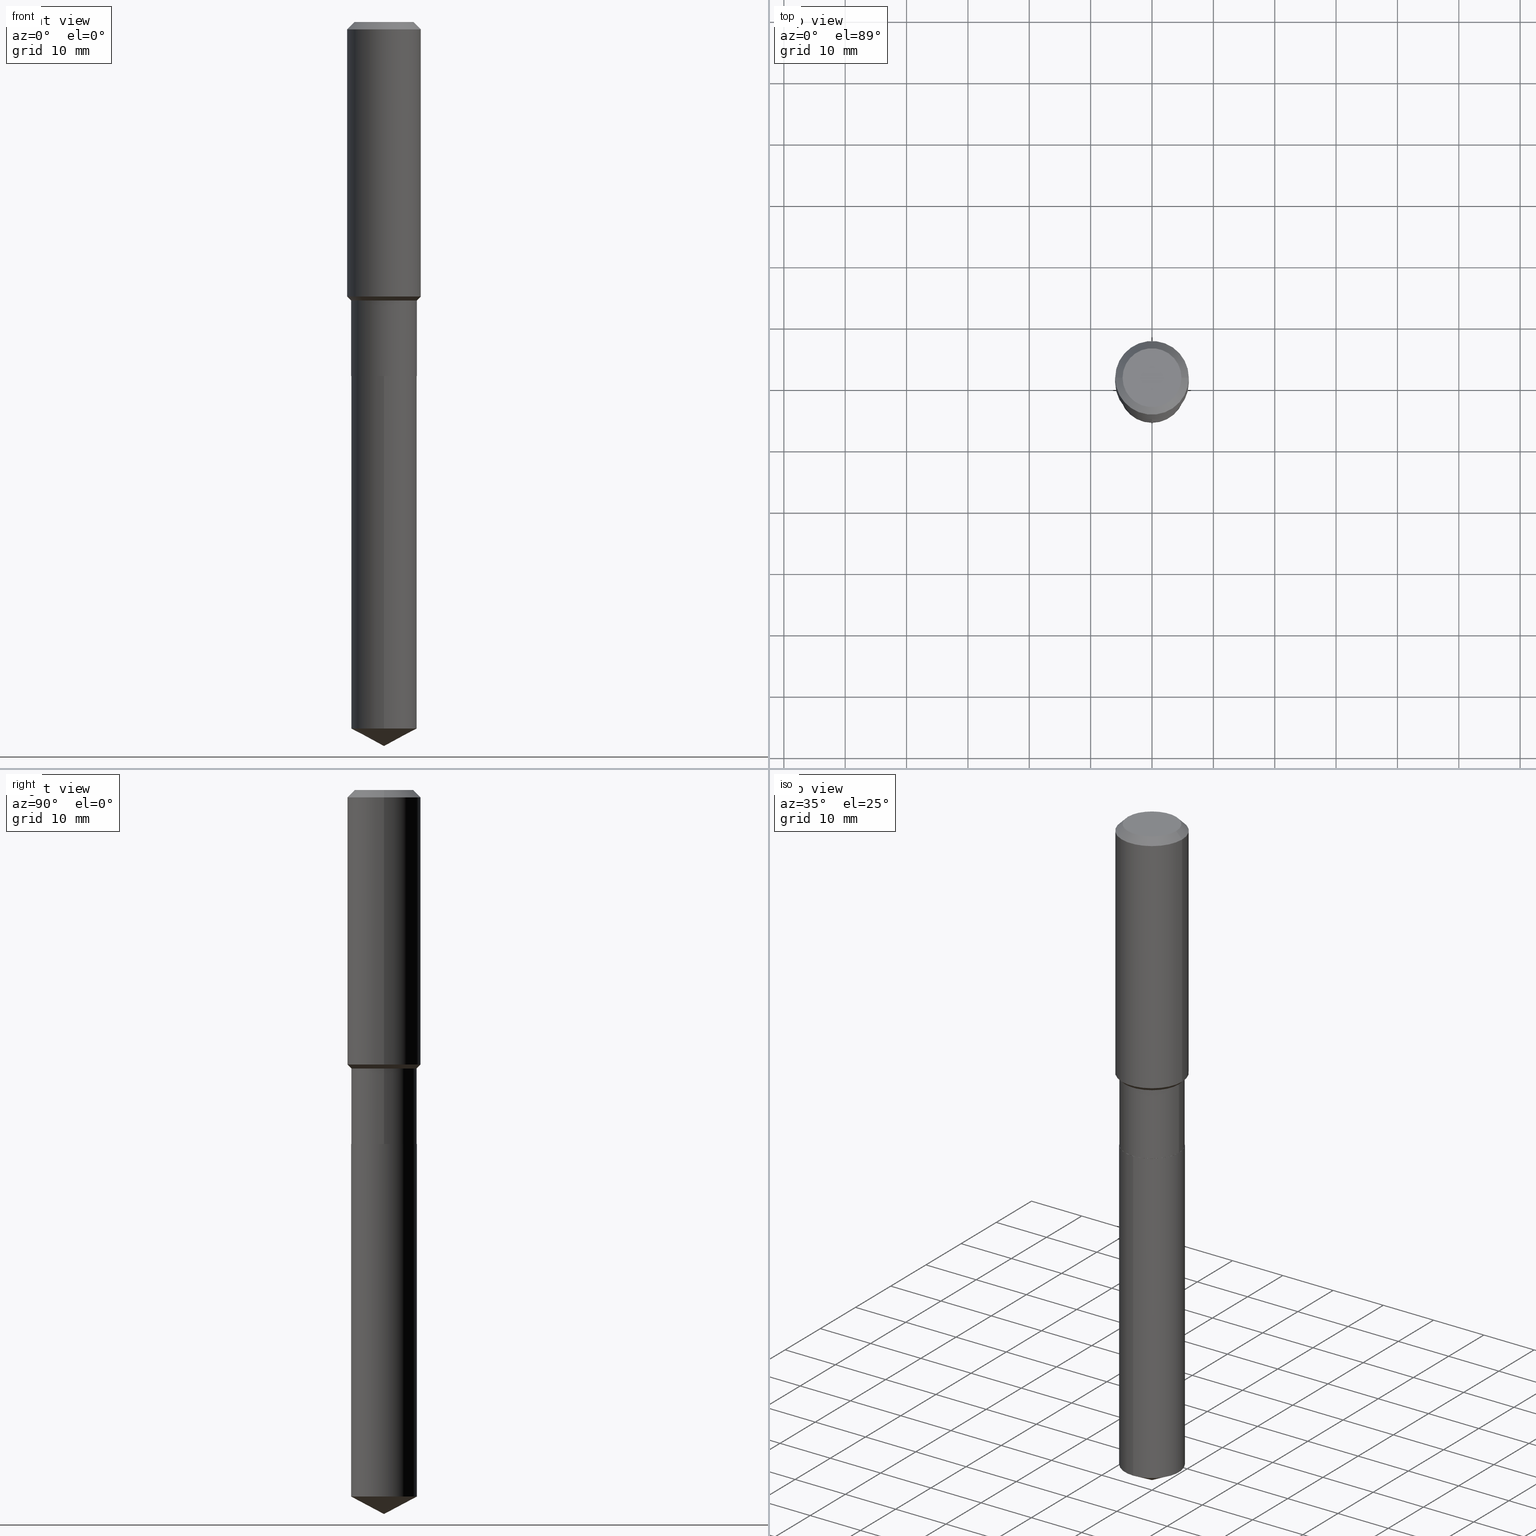
[diagram: canonical four-view strip — front | top / right | iso, engineering-drawing reading convention]
A machine part, canonical four-view strip (front | top / right | iso — engineering-drawing reading convention). The complete STEP part file that produces these views, byte-faithful:
ISO-10303-21;
HEADER;
FILE_DESCRIPTION (( 'STEP AP203' ),
    '1' );
FILE_NAME ('65237.STEP',
    '2024-04-24T21:48:02',
    ( '' ),
    ( '' ),
    'SwSTEP 2.0',
    'SolidWorks 2023',
    '' );
FILE_SCHEMA (( 'CONFIG_CONTROL_DESIGN' ));
ENDSEC;

DATA;
#1 = DIRECTION ( 'NONE',  ( -2.445449885251716834E-29, 3.491508434696715420E-15, 1.000000000000000000 ) ) ;
#2 = CIRCLE ( 'NONE', #314, 0.1889600000000000168 ) ;
#3 = DIRECTION ( 'NONE',  ( -2.445468806185136597E-29, 3.491481338843145583E-15, 1.000000000000000000 ) ) ;
#4 = DIRECTION ( 'NONE',  ( 1.000000000000000000, -6.982962677686263555E-15, 0.000000000000000000 ) ) ;
#5 = CARTESIAN_POINT ( 'NONE',  ( 0.2101500000000000035, -9.399067764165739668E-15, -2.271699999999999608 ) ) ;
#6 = CARTESIAN_POINT ( 'NONE',  ( -1.470961088054556343E-15, -0.2106500000000079420, -2.271699999999998720 ) ) ;
#7 = VERTEX_POINT ( 'NONE', #9 ) ;
#8 =( NAMED_UNIT ( * ) SI_UNIT ( $, .STERADIAN. ) SOLID_ANGLE_UNIT ( ) );
#9 = CARTESIAN_POINT ( 'NONE',  ( 0.2362000000000002153, -7.800143885042523413E-15, -1.761649999999999716 ) ) ;
#10 = AXIS2_PLACEMENT_3D ( 'NONE', #79, #113, #183 ) ;
#11 = AXIS2_PLACEMENT_3D ( 'NONE', #174, #360, #108 ) ;
#12 = FACE_OUTER_BOUND ( 'NONE', #469, .T. ) ;
#13 = CC_DESIGN_PERSON_AND_ORGANIZATION_ASSIGNMENT ( #198, #445, ( #323 ) ) ;
#14 = ORIENTED_EDGE ( 'NONE', *, *, #76, .T. ) ;
#15 = CARTESIAN_POINT ( 'NONE',  ( -0.2361999999999999933, -1.479550897644631324E-15, -0.04724000000000028177 ) ) ;
#16 =( CONVERSION_BASED_UNIT ( 'INCH', #219 ) LENGTH_UNIT ( ) NAMED_UNIT ( #290 ) );
#17 = UNCERTAINTY_MEASURE_WITH_UNIT (LENGTH_MEASURE( 1.000000000000000082E-05 ), #16, 'distance_accuracy_value', 'NONE');
#18 = CARTESIAN_POINT ( 'NONE',  ( -0.2106499999999999484, -5.588155659901859060E-15, -1.787199999999999900 ) ) ;
#19 = VERTEX_POINT ( 'NONE', #213 ) ;
#20 = CIRCLE ( 'NONE', #387, 0.2106499999999999484 ) ;
#21 = DIRECTION ( 'NONE',  ( -2.445468806185136597E-29, 3.491481338843145583E-15, 1.000000000000000000 ) ) ;
#22 = APPROVAL_ROLE ( '' ) ;
#23 = CYLINDRICAL_SURFACE ( 'NONE', #354, 0.2362000000000001043 ) ;
#24 = ORIENTED_EDGE ( 'NONE', *, *, #438, .T. ) ;
#25 = PERSON_AND_ORGANIZATION ( #102, #441 ) ;
#26 = DIRECTION ( 'NONE',  ( -6.982962677686265922E-15, -1.000000000000000000, 3.890597664843479129E-15 ) ) ;
#27 = APPROVAL_DATE_TIME ( #359, #231 ) ;
#28 = ADVANCED_FACE ( 'NONE', ( #74 ), #47, .T. ) ;
#29 = AXIS2_PLACEMENT_3D ( 'NONE', #218, #339, #45 ) ;
#30 = CONICAL_SURFACE ( 'NONE', #481, 74.04434902938362484, 1.082104136236486935 ) ;
#31 = CARTESIAN_POINT ( 'NONE',  ( 1.108696789848353068E-28, -1.582937420449712200E-14, -4.533695408220509648 ) ) ;
#32 = APPROVAL_STATUS ( 'not_yet_approved' ) ;
#33 = APPLICATION_CONTEXT ( 'configuration controlled 3d designs of mechanical parts and assemblies' ) ;
#34 = AXIS2_PLACEMENT_3D ( 'NONE', #456, #148, #4 ) ;
#35 = EDGE_CURVE ( 'NONE', #301, #268, #20, .T. ) ;
#36 = DIRECTION ( 'NONE',  ( -2.445449885251716834E-29, 3.491508434696715420E-15, 1.000000000000000000 ) ) ;
#37 = LINE ( 'NONE', #332, #457 ) ;
#38 = EDGE_CURVE ( 'NONE', #367, #83, #404, .T. ) ;
#39 = CARTESIAN_POINT ( 'NONE',  ( 5.555371487010773044E-29, -7.931598157449970914E-15, -2.271699999999999608 ) ) ;
#40 = DIRECTION ( 'NONE',  ( 2.445468806185136597E-29, -3.491481338843145583E-15, -1.000000000000000000 ) ) ;
#41 = CIRCLE ( 'NONE', #247, 0.1889600000000000168 ) ;
#42 = CC_DESIGN_SECURITY_CLASSIFICATION ( #266, ( #323 ) ) ;
#43 = DIRECTION ( 'NONE',  ( 0.7071067811866199593, -2.468850131083015945E-15, 0.7071067811864750752 ) ) ;
#44 = CARTESIAN_POINT ( 'NONE',  ( 5.555371487010773044E-29, -7.931598157449970914E-15, -2.271699999999999608 ) ) ;
#45 = DIRECTION ( 'NONE',  ( -6.982962677686265922E-15, -1.000000000000000000, 2.593731776562319814E-15 ) ) ;
#46 = ADVANCED_FACE ( 'NONE', ( #298 ), #110, .T. ) ;
#47 = CONICAL_SURFACE ( 'NONE', #10, 0.2106499999999999484, 0.7853981633974489451 ) ;
#48 = AXIS2_PLACEMENT_3D ( 'NONE', #447, #483, #215 ) ;
#49 = EDGE_LOOP ( 'NONE', ( #468, #235, #14, #146 ) ) ;
#50 = DIRECTION ( 'NONE',  ( 1.000000000000000000, -6.982962677686263555E-15, 0.000000000000000000 ) ) ;
#51 = DIRECTION ( 'NONE',  ( 1.000000000000000000, -6.982962677686266711E-15, 4.876176775795935793E-29 ) ) ;
#52 = VERTEX_POINT ( 'NONE', #451 ) ;
#53 = DIRECTION ( 'NONE',  ( -2.445449885251716553E-29, 3.491508434696715420E-15, 1.000000000000000000 ) ) ;
#54 = ORIENTED_EDGE ( 'NONE', *, *, #340, .F. ) ;
#55 = PERSON_AND_ORGANIZATION ( #102, #441 ) ;
#56 = CLOSED_SHELL ( 'NONE', ( #192, #289, #311, #28, #245, #226, #246, #201, #172, #263, #374, #46 ) ) ;
#57 = CONICAL_SURFACE ( 'NONE', #69, 0.2361999999999999933, 0.7853981633974452814 ) ;
#58 = CARTESIAN_POINT ( 'NONE',  ( -4.713871149261273121E-47, 6.730158695841826722E-33, 1.927594061857931128E-18 ) ) ;
#59 = CALENDAR_DATE ( 2024, 24, 4 ) ;
#60 = DIRECTION ( 'NONE',  ( -2.445468806185136597E-29, 3.491481338843145583E-15, 1.000000000000000000 ) ) ;
#61 = COORDINATED_UNIVERSAL_TIME_OFFSET ( 5, 0, .BEHIND. ) ;
#62 = PLANE ( 'NONE',  #176 ) ;
#63 = AXIS2_PLACEMENT_3D ( 'NONE', #260, #421, #434 ) ;
#64 = LOCAL_TIME ( 17, 48, 2.000000000000000000, #357 ) ;
#65 = DATE_TIME_ROLE ( 'classification_date' ) ;
#66 = EDGE_CURVE ( 'NONE', #52, #134, #458, .T. ) ;
#67 = DIRECTION ( 'NONE',  ( -2.438088387897960049E-29, 3.491481338843145188E-15, 1.000000000000000000 ) ) ;
#68 = CIRCLE ( 'NONE', #29, 0.2106500000000000039 ) ;
#69 = AXIS2_PLACEMENT_3D ( 'NONE', #392, #116, #196 ) ;
#70 = ORIENTED_EDGE ( 'NONE', *, *, #197, .F. ) ;
#71 = DIRECTION ( 'NONE',  ( -6.982962677686265922E-15, -1.000000000000000000, 3.541896320645556530E-15 ) ) ;
#72 = DIRECTION ( 'NONE',  ( -6.982962677686265922E-15, -1.000000000000000000, 3.890597664843479129E-15 ) ) ;
#73 = DIRECTION ( 'NONE',  ( -6.982962677686265922E-15, -1.000000000000000000, 3.890597664843479129E-15 ) ) ;
#74 = FACE_OUTER_BOUND ( 'NONE', #220, .T. ) ;
#75 = AXIS2_PLACEMENT_3D ( 'NONE', #203, #300, #72 ) ;
#76 = EDGE_CURVE ( 'NONE', #373, #83, #425, .T. ) ;
#77 = CARTESIAN_POINT ( 'NONE',  ( 0.2361999999999999933, -1.814313362916447440E-15, -0.04724000000000028177 ) ) ;
#78 = EDGE_LOOP ( 'NONE', ( #446, #214 ) ) ;
#79 = CARTESIAN_POINT ( 'NONE',  ( 4.370541850414076546E-29, -6.239975448780469270E-15, -1.787199999999999900 ) ) ;
#80 = CONICAL_SURFACE ( 'NONE', #185, 74.04434902938362484, 1.082104136236486935 ) ;
#81 = DIRECTION ( 'NONE',  ( 1.000000000000000000, -6.982962677686266711E-15, 4.876176775795935793E-29 ) ) ;
#82 = CC_DESIGN_DATE_AND_TIME_ASSIGNMENT ( #236, #161, ( #390 ) ) ;
#83 = VERTEX_POINT ( 'NONE', #6 ) ;
#84 = ORIENTED_EDGE ( 'NONE', *, *, #66, .F. ) ;
#85 = DIRECTION ( 'NONE',  ( 1.000000000000000000, -6.982962677686266711E-15, 4.876185090822587894E-29 ) ) ;
#86 = PERSON_AND_ORGANIZATION ( #102, #441 ) ;
#87 = CARTESIAN_POINT ( 'NONE',  ( -0.2106499999999999762, 1.496758272878650872E-15, -1.036173676762195916E-29 ) ) ;
#88 = EDGE_LOOP ( 'NONE', ( #190, #341, #152, #186 ) ) ;
#89 = CALENDAR_DATE ( 2024, 24, 4 ) ;
#90 = CYLINDRICAL_SURFACE ( 'NONE', #117, 0.2106499999999999762 ) ;
#91 = APPLICATION_CONTEXT ( 'configuration controlled 3d designs of mechanical parts and assemblies' ) ;
#92 = CYLINDRICAL_SURFACE ( 'NONE', #182, 0.2362000000000001043 ) ;
#93 = CC_DESIGN_PERSON_AND_ORGANIZATION_ASSIGNMENT ( #129, #230, ( #390 ) ) ;
#94 = APPLICATION_PROTOCOL_DEFINITION ( 'international standard', 'config_control_design', 1994, #33 ) ;
#95 = ORIENTED_EDGE ( 'NONE', *, *, #138, .F. ) ;
#96 = SECURITY_CLASSIFICATION_LEVEL ( 'unclassified' ) ;
#97 = CLOSED_SHELL ( 'NONE', ( #329, #370, #454, #366, #477 ) ) ;
#98 = AXIS2_PLACEMENT_3D ( 'NONE', #31, #36, #106 ) ;
#99 = EDGE_LOOP ( 'NONE', ( #122, #261, #136, #309 ) ) ;
#100 = DIRECTION ( 'NONE',  ( -6.982962677686265922E-15, -1.000000000000000000, 3.541896320645556530E-15 ) ) ;
#101 = AXIS2_PLACEMENT_3D ( 'NONE', #206, #433, #363 ) ;
#102 = PERSON ( 'UNSPECIFIED', 'UNSPECIFIED', 'UNSPECIFIED', ('UNSPECIFIED'), ('UNSPECIFIED'), ('UNSPECIFIED') ) ;
#103 = ORIENTED_EDGE ( 'NONE', *, *, #364, .F. ) ;
#104 = DIRECTION ( 'NONE',  ( -2.445468806185136597E-29, 3.491481338843145583E-15, 1.000000000000000000 ) ) ;
#105 = DIRECTION ( 'NONE',  ( -2.445449885251716553E-29, 3.491508434696715420E-15, 1.000000000000000000 ) ) ;
#106 = DIRECTION ( 'NONE',  ( -6.982962677686265922E-15, -1.000000000000000000, 2.593731776562319814E-15 ) ) ;
#107 = DIRECTION ( 'NONE',  ( -2.445468806185136597E-29, 3.491481338843145583E-15, 1.000000000000000000 ) ) ;
#108 = DIRECTION ( 'NONE',  ( 1.000000000000000000, -6.982962677686266711E-15, 0.000000000000000000 ) ) ;
#109 = CARTESIAN_POINT ( 'NONE',  ( 0.2361999999999999933, -1.785387205520586782E-15, -0.04724000000000028177 ) ) ;
#110 = CONICAL_SURFACE ( 'NONE', #242, 0.2101500000000000035, 0.7853981633975507526 ) ;
#111 = CIRCLE ( 'NONE', #98, 0.2106500000000000039 ) ;
#112 = EDGE_CURVE ( 'NONE', #268, #7, #181, .T. ) ;
#113 = DIRECTION ( 'NONE',  ( -2.445468806185136597E-29, 3.491481338843145583E-15, 1.000000000000000000 ) ) ;
#114 = ORIENTED_EDGE ( 'NONE', *, *, #160, .F. ) ;
#115 = DIRECTION ( 'NONE',  ( 0.7071067811865479058, -2.468850131082261399E-15, 0.7071067811865470176 ) ) ;
#116 = DIRECTION ( 'NONE',  ( 2.445468806185136597E-29, -3.491481338843145583E-15, -1.000000000000000000 ) ) ;
#117 = AXIS2_PLACEMENT_3D ( 'NONE', #319, #402, #81 ) ;
#118 = APPROVAL_PERSON_ORGANIZATION ( #25, #231, #407 ) ;
#119 = EDGE_LOOP ( 'NONE', ( #84, #452, #347, #173 ) ) ;
#120 = DESIGN_CONTEXT ( 'detailed design', #91, 'design' ) ;
#121 = CARTESIAN_POINT ( 'NONE',  ( -0.2106499999999999484, -4.743217175901818200E-15, -1.787199999999999900 ) ) ;
#122 = ORIENTED_EDGE ( 'NONE', *, *, #251, .F. ) ;
#123 = VERTEX_POINT ( 'NONE', #424 ) ;
#124 = LINE ( 'NONE', #237, #156 ) ;
#125 = DIRECTION ( 'NONE',  ( 1.000000000000000000, -6.982962677686267499E-15, 0.000000000000000000 ) ) ;
#126 = ORIENTED_EDGE ( 'NONE', *, *, #408, .F. ) ;
#127 = APPROVAL ( #195, 'UNSPECIFIED' ) ;
#128 = MANIFOLD_SOLID_BREP ( 'Body-Move/Copy2[1]', #97 ) ;
#129 = PERSON_AND_ORGANIZATION ( #102, #441 ) ;
#130 = DIRECTION ( 'NONE',  ( -2.445468806185136597E-29, 3.491481338843145583E-15, 1.000000000000000000 ) ) ;
#131 = ORIENTED_EDGE ( 'NONE', *, *, #267, .T. ) ;
#132 = ORIENTED_EDGE ( 'NONE', *, *, #35, .T. ) ;
#133 = CIRCLE ( 'NONE', #362, 0.2362000000000002153 ) ;
#134 = VERTEX_POINT ( 'NONE', #77 ) ;
#135 = CARTESIAN_POINT ( 'NONE',  ( 4.370541850414076546E-29, -6.239975448780469270E-15, -1.787199999999999900 ) ) ;
#136 = ORIENTED_EDGE ( 'NONE', *, *, #448, .T. ) ;
#137 = CARTESIAN_POINT ( 'NONE',  ( 5.554148752607681363E-29, -7.929852416780550200E-15, -2.271199999999999442 ) ) ;
#138 = EDGE_CURVE ( 'NONE', #382, #373, #68, .T. ) ;
#139 = CIRCLE ( 'NONE', #427, 0.2106500000000000039 ) ;
#140 = DIRECTION ( 'NONE',  ( 1.000000000000000000, -6.982962677686267499E-15, 0.000000000000000000 ) ) ;
#141 = DIRECTION ( 'NONE',  ( 1.000000000000000000, -6.982962677686265922E-15, 0.000000000000000000 ) ) ;
#142 = ORIENTED_EDGE ( 'NONE', *, *, #444, .T. ) ;
#143 = EDGE_CURVE ( 'NONE', #282, #123, #151, .T. ) ;
#144 = ORIENTED_EDGE ( 'NONE', *, *, #112, .T. ) ;
#145 = CARTESIAN_POINT ( 'NONE',  ( -8.491668502287081473E-28, 1.212405228145137186E-13, 34.72437874015748349 ) ) ;
#146 = ORIENTED_EDGE ( 'NONE', *, *, #38, .F. ) ;
#147 = ORIENTED_EDGE ( 'NONE', *, *, #281, .T. ) ;
#148 = DIRECTION ( 'NONE',  ( -2.445468806185136597E-29, 3.491481338843145583E-15, 1.000000000000000000 ) ) ;
#149 = CONICAL_SURFACE ( 'NONE', #264, 0.2106499999999999484, 0.7853981633974489451 ) ;
#150 = ORIENTED_EDGE ( 'NONE', *, *, #438, .F. ) ;
#151 = LINE ( 'NONE', #381, #352 ) ;
#152 = ORIENTED_EDGE ( 'NONE', *, *, #160, .T. ) ;
#153 = CARTESIAN_POINT ( 'NONE',  ( 0.2362000000000001043, -1.649375784469496920E-15, 1.151752954443000508E-29 ) ) ;
#154 = PLANE ( 'NONE',  #234 ) ;
#155 = FACE_OUTER_BOUND ( 'NONE', #180, .T. ) ;
#156 = VECTOR ( 'NONE', #53, 39.37007874015748143 ) ;
#157 = VECTOR ( 'NONE', #43, 39.37007874015748143 ) ;
#158 = ORIENTED_EDGE ( 'NONE', *, *, #197, .T. ) ;
#159 = CARTESIAN_POINT ( 'NONE',  ( -9.427742298522546243E-47, 1.346031739168365344E-32, 3.855188123715862256E-18 ) ) ;
#160 = EDGE_CURVE ( 'NONE', #134, #223, #233, .T. ) ;
#161 = DATE_TIME_ROLE ( 'creation_date' ) ;
#162 = DIRECTION ( 'NONE',  ( 1.000000000000000000, -6.982962677686266711E-15, 4.876176775795935793E-29 ) ) ;
#163 = CC_DESIGN_PERSON_AND_ORGANIZATION_ASSIGNMENT ( #473, #164, ( #323 ) ) ;
#164 = PERSON_AND_ORGANIZATION_ROLE ( 'design_supplier' ) ;
#165 = FACE_OUTER_BOUND ( 'NONE', #460, .T. ) ;
#166 = LOCAL_TIME ( 17, 48, 2.000000000000000000, #355 ) ;
#167 = DIRECTION ( 'NONE',  ( -2.445468806185136597E-29, 3.491481338843145583E-15, 1.000000000000000000 ) ) ;
#168 = APPROVAL_ROLE ( '' ) ;
#169 = EDGE_CURVE ( 'NONE', #19, #223, #389, .T. ) ;
#170 = CIRCLE ( 'NONE', #48, 0.2101500000000000035 ) ;
#171 = CARTESIAN_POINT ( 'NONE',  ( 5.554148752607681363E-29, -7.929852416780550200E-15, -2.271199999999999442 ) ) ;
#172 = ADVANCED_FACE ( 'NONE', ( #416 ), #419, .T. ) ;
#173 = ORIENTED_EDGE ( 'NONE', *, *, #364, .T. ) ;
#174 = CARTESIAN_POINT ( 'NONE',  ( 1.155239464041865506E-30, -1.649375784469511859E-16, -0.04724000000000028177 ) ) ;
#175 = CARTESIAN_POINT ( 'NONE',  ( 1.496758272878761510E-15, 0.2106499999999841555, -4.533695408220510537 ) ) ;
#176 = AXIS2_PLACEMENT_3D ( 'NONE', #39, #67, #371 ) ;
#177 = LINE ( 'NONE', #455, #465 ) ;
#178 = CARTESIAN_POINT ( 'NONE',  ( 0.2106499999999999484, -7.710936536835081819E-15, -1.787199999999999900 ) ) ;
#179 = ADVANCED_BREP_SHAPE_REPRESENTATION ( '65237', ( #128, #285, #101 ), #184 ) ;
#180 = EDGE_LOOP ( 'NONE', ( #295, #24, #147, #103 ) ) ;
#181 = LINE ( 'NONE', #178, #216 ) ;
#182 = AXIS2_PLACEMENT_3D ( 'NONE', #474, #60, #466 ) ;
#183 = DIRECTION ( 'NONE',  ( 1.000000000000000000, -6.982962677686267499E-15, 0.000000000000000000 ) ) ;
#184 =( GEOMETRIC_REPRESENTATION_CONTEXT ( 3 ) GLOBAL_UNCERTAINTY_ASSIGNED_CONTEXT ( ( #17 ) ) GLOBAL_UNIT_ASSIGNED_CONTEXT ( ( #16, #464, #8 ) ) REPRESENTATION_CONTEXT ( 'NONE', 'WORKASPACE' ) );
#185 = AXIS2_PLACEMENT_3D ( 'NONE', #369, #249, #71 ) ;
#186 = ORIENTED_EDGE ( 'NONE', *, *, #461, .F. ) ;
#187 = DIRECTION ( 'NONE',  ( 2.438088387897960049E-29, -3.491481338843145188E-15, -1.000000000000000000 ) ) ;
#188 = PRODUCT_RELATED_PRODUCT_CATEGORY ( 'detail', '', ( #284 ) ) ;
#189 = FACE_OUTER_BOUND ( 'NONE', #386, .T. ) ;
#190 = ORIENTED_EDGE ( 'NONE', *, *, #350, .F. ) ;
#191 =( LENGTH_UNIT ( ) NAMED_UNIT ( * ) SI_UNIT ( $, .METRE. ) );
#192 = ADVANCED_FACE ( 'NONE', ( #12 ), #287, .T. ) ;
#193 = CYLINDRICAL_SURFACE ( 'NONE', #194, 0.2106500000000000039 ) ;
#194 = AXIS2_PLACEMENT_3D ( 'NONE', #440, #400, #26 ) ;
#195 = APPROVAL_STATUS ( 'not_yet_approved' ) ;
#196 = DIRECTION ( 'NONE',  ( -1.000000000000000000, 6.982962677686266711E-15, 0.000000000000000000 ) ) ;
#197 = EDGE_CURVE ( 'NONE', #7, #19, #410, .T. ) ;
#198 = PERSON_AND_ORGANIZATION ( #102, #441 ) ;
#199 = CARTESIAN_POINT ( 'NONE',  ( 0.2106500000000000039, -9.400813504835161960E-15, -2.271199999999999442 ) ) ;
#200 = ORIENTED_EDGE ( 'NONE', *, *, #255, .T. ) ;
#201 = ADVANCED_FACE ( 'NONE', ( #155 ), #92, .T. ) ;
#202 = CALENDAR_DATE ( 2024, 24, 4 ) ;
#203 = CARTESIAN_POINT ( 'NONE',  ( 5.555371487010773044E-29, -7.931598157449970914E-15, -2.271699999999999608 ) ) ;
#204 = CIRCLE ( 'NONE', #11, 0.2361999999999999933 ) ;
#205 = ORIENTED_EDGE ( 'NONE', *, *, #403, .T. ) ;
#206 = CARTESIAN_POINT ( 'NONE',  ( 0.000000000000000000, 0.000000000000000000, 0.000000000000000000 ) ) ;
#207 = LINE ( 'NONE', #280, #420 ) ;
#208 = AXIS2_PLACEMENT_3D ( 'NONE', #379, #1, #306 ) ;
#209 = APPROVAL_PERSON_ORGANIZATION ( #365, #240, #168 ) ;
#210 = ORIENTED_EDGE ( 'NONE', *, *, #281, .F. ) ;
#211 = FACE_OUTER_BOUND ( 'NONE', #317, .T. ) ;
#212 = LINE ( 'NONE', #417, #297 ) ;
#213 = CARTESIAN_POINT ( 'NONE',  ( -0.2362000000000002153, -4.472466158707667338E-15, -1.761649999999999716 ) ) ;
#214 = ORIENTED_EDGE ( 'NONE', *, *, #38, .T. ) ;
#215 = DIRECTION ( 'NONE',  ( 1.000000000000000000, -6.982962677686263555E-15, 0.000000000000000000 ) ) ;
#216 = VECTOR ( 'NONE', #115, 39.37007874015748854 ) ;
#217 = CIRCLE ( 'NONE', #368, 0.2101500000000000035 ) ;
#218 = CARTESIAN_POINT ( 'NONE',  ( 1.108696789848353068E-28, -1.582937420449712200E-14, -4.533695408220509648 ) ) ;
#219 = LENGTH_MEASURE_WITH_UNIT ( LENGTH_MEASURE( 0.02539999999999999897 ), #191 );
#220 = EDGE_LOOP ( 'NONE', ( #205, #200, #70, #432 ) ) ;
#221 = FACE_OUTER_BOUND ( 'NONE', #78, .T. ) ;
#222 = CARTESIAN_POINT ( 'NONE',  ( 1.155239464041865506E-30, -1.649375784469511859E-16, -0.04724000000000028177 ) ) ;
#223 = VERTEX_POINT ( 'NONE', #15 ) ;
#224 = VECTOR ( 'NONE', #428, 39.37007874015748143 ) ;
#225 = DIRECTION ( 'NONE',  ( 1.000000000000000000, -6.982962677686266711E-15, 0.000000000000000000 ) ) ;
#226 = ADVANCED_FACE ( 'NONE', ( #274 ), #353, .T. ) ;
#227 = FACE_OUTER_BOUND ( 'NONE', #430, .T. ) ;
#228 = ORIENTED_EDGE ( 'NONE', *, *, #426, .T. ) ;
#229 = DIRECTION ( 'NONE',  ( -0.7071067811865479058, 7.493145998870355738E-15, 0.7071067811865470176 ) ) ;
#230 = PERSON_AND_ORGANIZATION_ROLE ( 'creator' ) ;
#231 = APPROVAL ( #401, 'UNSPECIFIED' ) ;
#232 = LINE ( 'NONE', #153, #224 ) ;
#233 = CIRCLE ( 'NONE', #344, 0.2361999999999999933 ) ;
#234 = AXIS2_PLACEMENT_3D ( 'NONE', #383, #307, #470 ) ;
#235 = ORIENTED_EDGE ( 'NONE', *, *, #138, .T. ) ;
#236 = DATE_AND_TIME ( #394, #486 ) ;
#237 = CARTESIAN_POINT ( 'NONE',  ( 1.496758272878706487E-15, 0.2106499999999920936, -2.271700000000000053 ) ) ;
#238 = DATE_AND_TIME ( #89, #64 ) ;
#239 = CARTESIAN_POINT ( 'NONE',  ( 4.370541850414076546E-29, -6.239975448780469270E-15, -1.787199999999999900 ) ) ;
#240 = APPROVAL ( #32, 'UNSPECIFIED' ) ;
#241 = DIRECTION ( 'NONE',  ( -2.445449885251716834E-29, 3.491508434696715420E-15, 1.000000000000000000 ) ) ;
#242 = AXIS2_PLACEMENT_3D ( 'NONE', #44, #107, #50 ) ;
#243 = PERSON_AND_ORGANIZATION_ROLE ( 'classification_officer' ) ;
#244 = CC_DESIGN_APPROVAL ( #231, ( #266 ) ) ;
#245 = ADVANCED_FACE ( 'NONE', ( #313 ), #90, .T. ) ;
#246 = ADVANCED_FACE ( 'NONE', ( #165 ), #149, .T. ) ;
#247 = AXIS2_PLACEMENT_3D ( 'NONE', #159, #431, #85 ) ;
#248 = ORIENTED_EDGE ( 'NONE', *, *, #358, .F. ) ;
#249 = DIRECTION ( 'NONE',  ( -2.445449885251716834E-29, 3.491508434696715420E-15, 1.000000000000000000 ) ) ;
#250 = AXIS2_PLACEMENT_3D ( 'NONE', #135, #167, #257 ) ;
#251 = EDGE_CURVE ( 'NONE', #123, #301, #391, .T. ) ;
#252 = ORIENTED_EDGE ( 'NONE', *, *, #442, .F. ) ;
#253 = DIRECTION ( 'NONE',  ( 6.273719981627766865E-15, 0.8829475928589298750, 0.4694715627858853657 ) ) ;
#254 = CARTESIAN_POINT ( 'NONE',  ( 1.155239464041865506E-30, -1.649375784469511859E-16, -0.04724000000000028177 ) ) ;
#255 = EDGE_CURVE ( 'NONE', #301, #19, #462, .T. ) ;
#256 = VERTEX_POINT ( 'NONE', #397 ) ;
#257 = DIRECTION ( 'NONE',  ( 1.000000000000000000, -6.982962677686267499E-15, 0.000000000000000000 ) ) ;
#258 = CARTESIAN_POINT ( 'NONE',  ( -1.470961088054556343E-15, -0.2106500000000079420, -2.271699999999998720 ) ) ;
#259 = DIRECTION ( 'NONE',  ( -6.165590087286836029E-15, -0.8829475928589264333, 0.4694715627858916385 ) ) ;
#260 = CARTESIAN_POINT ( 'NONE',  ( 4.308060122416044929E-29, -6.150768100573026887E-15, -1.761649999999999716 ) ) ;
#261 = ORIENTED_EDGE ( 'NONE', *, *, #467, .T. ) ;
#262 = DIRECTION ( 'NONE',  ( 0.7071067811865453523, -7.319954787623248157E-15, -0.7071067811865496822 ) ) ;
#263 = ADVANCED_FACE ( 'NONE', ( #189 ), #270, .F. ) ;
#264 = AXIS2_PLACEMENT_3D ( 'NONE', #239, #21, #125 ) ;
#265 = CARTESIAN_POINT ( 'NONE',  ( 0.000000000000000000, 0.000000000000000000, 0.000000000000000000 ) ) ;
#266 = SECURITY_CLASSIFICATION ( '', '', #96 ) ;
#267 = EDGE_CURVE ( 'NONE', #484, #52, #41, .T. ) ;
#268 = VERTEX_POINT ( 'NONE', #316 ) ;
#269 = CARTESIAN_POINT ( 'NONE',  ( 5.555371487010773044E-29, -7.931598157449970914E-15, -2.271699999999999608 ) ) ;
#270 = PLANE ( 'NONE',  #439 ) ;
#271 = ORIENTED_EDGE ( 'NONE', *, *, #448, .F. ) ;
#272 = ORIENTED_EDGE ( 'NONE', *, *, #472, .T. ) ;
#273 = MECHANICAL_CONTEXT ( 'NONE', #33, 'mechanical' ) ;
#274 = FACE_OUTER_BOUND ( 'NONE', #99, .T. ) ;
#275 = ORIENTED_EDGE ( 'NONE', *, *, #472, .F. ) ;
#276 = FACE_OUTER_BOUND ( 'NONE', #315, .T. ) ;
#277 = VECTOR ( 'NONE', #262, 39.37007874015748143 ) ;
#278 = PERSON_AND_ORGANIZATION_ROLE ( 'design_owner' ) ;
#279 = DIRECTION ( 'NONE',  ( -2.445468806185136877E-29, 3.491481338843145188E-15, 1.000000000000000000 ) ) ;
#280 = CARTESIAN_POINT ( 'NONE',  ( 0.2106499999999999762, -1.470961088054611958E-15, 1.027166637821413806E-29 ) ) ;
#281 = EDGE_CURVE ( 'NONE', #7, #134, #232, .T. ) ;
#282 = VERTEX_POINT ( 'NONE', #471 ) ;
#283 = COORDINATED_UNIVERSAL_TIME_OFFSET ( 5, 0, .BEHIND. ) ;
#284 = PRODUCT ( '65237', '65237', '', ( #273 ) ) ;
#285 = MANIFOLD_SOLID_BREP ( 'Body-Move/Copy2[2]', #56 ) ;
#286 = EDGE_LOOP ( 'NONE', ( #328, #327, #459, #271 ) ) ;
#287 = CONICAL_SURFACE ( 'NONE', #34, 0.2101500000000000035, 0.7853981633975507526 ) ;
#288 = LOCAL_TIME ( 17, 48, 2.000000000000000000, #283 ) ;
#289 = ADVANCED_FACE ( 'NONE', ( #312 ), #57, .T. ) ;
#290 = DIMENSIONAL_EXPONENTS ( 1.000000000000000000, 0.000000000000000000, 0.000000000000000000, 0.000000000000000000, 0.000000000000000000, 0.000000000000000000, 0.000000000000000000 ) ;
#291 = ORIENTED_EDGE ( 'NONE', *, *, #385, .F. ) ;
#292 = FACE_OUTER_BOUND ( 'NONE', #49, .T. ) ;
#293 = EDGE_CURVE ( 'NONE', #382, #367, #124, .T. ) ;
#294 = AXIS2_PLACEMENT_3D ( 'NONE', #222, #40, #342 ) ;
#295 = ORIENTED_EDGE ( 'NONE', *, *, #169, .F. ) ;
#296 = DIRECTION ( 'NONE',  ( -2.445468806185136597E-29, 3.491481338843145583E-15, 1.000000000000000000 ) ) ;
#297 = VECTOR ( 'NONE', #253, 39.37007874015748143 ) ;
#298 = FACE_OUTER_BOUND ( 'NONE', #436, .T. ) ;
#299 = VERTEX_POINT ( 'NONE', #199 ) ;
#300 = DIRECTION ( 'NONE',  ( -2.445449885251716834E-29, 3.491508434696715420E-15, 1.000000000000000000 ) ) ;
#301 = VERTEX_POINT ( 'NONE', #18 ) ;
#302 = CARTESIAN_POINT ( 'NONE',  ( 5.555371487010773044E-29, -7.931598157449970914E-15, -2.271699999999999608 ) ) ;
#303 = ORIENTED_EDGE ( 'NONE', *, *, #426, .F. ) ;
#304 = CARTESIAN_POINT ( 'NONE',  ( -0.1889600000000000168, 1.401969416799070942E-15, 3.855188123706346622E-18 ) ) ;
#305 = CIRCLE ( 'NONE', #412, 0.2106500000000000039 ) ;
#306 = DIRECTION ( 'NONE',  ( -6.982962677686265922E-15, -1.000000000000000000, 3.890597664843479129E-15 ) ) ;
#307 = DIRECTION ( 'NONE',  ( 2.445449885251716553E-29, -3.491508434696715420E-15, -1.000000000000000000 ) ) ;
#308 = DIRECTION ( 'NONE',  ( -2.445468806185136877E-29, 3.491481338843145188E-15, 1.000000000000000000 ) ) ;
#309 = ORIENTED_EDGE ( 'NONE', *, *, #35, .F. ) ;
#310 = DIRECTION ( 'NONE',  ( 1.000000000000000000, -6.982962677686265922E-15, 0.000000000000000000 ) ) ;
#311 = ADVANCED_FACE ( 'NONE', ( #227 ), #23, .T. ) ;
#312 = FACE_OUTER_BOUND ( 'NONE', #88, .T. ) ;
#313 = FACE_OUTER_BOUND ( 'NONE', #286, .T. ) ;
#314 = AXIS2_PLACEMENT_3D ( 'NONE', #409, #296, #443 ) ;
#315 = EDGE_LOOP ( 'NONE', ( #320, #377, #54, #487 ) ) ;
#316 = CARTESIAN_POINT ( 'NONE',  ( 0.2106499999999999484, -7.710936536835081819E-15, -1.787199999999999900 ) ) ;
#317 = EDGE_LOOP ( 'NONE', ( #275, #303 ) ) ;
#318 = DATE_AND_TIME ( #399, #166 ) ;
#319 = CARTESIAN_POINT ( 'NONE',  ( 0.000000000000000000, 0.000000000000000000, 0.000000000000000000 ) ) ;
#320 = ORIENTED_EDGE ( 'NONE', *, *, #385, .T. ) ;
#321 = COORDINATED_UNIVERSAL_TIME_OFFSET ( 5, 0, .BEHIND. ) ;
#322 = VECTOR ( 'NONE', #279, 39.37007874015748143 ) ;
#323 = PRODUCT_DEFINITION_FORMATION_WITH_SPECIFIED_SOURCE ( 'ANY', '', #284, .NOT_KNOWN. ) ;
#324 = APPLICATION_PROTOCOL_DEFINITION ( 'international standard', 'config_control_design', 1994, #91 ) ;
#325 = CYLINDRICAL_SURFACE ( 'NONE', #345, 0.2106500000000000039 ) ;
#326 = APPROVAL_DATE_TIME ( #485, #240 ) ;
#327 = ORIENTED_EDGE ( 'NONE', *, *, #251, .T. ) ;
#328 = ORIENTED_EDGE ( 'NONE', *, *, #408, .T. ) ;
#329 = ADVANCED_FACE ( 'NONE', ( #276 ), #193, .T. ) ;
#330 = DIRECTION ( 'NONE',  ( 1.000000000000000000, -6.982962677686266711E-15, 0.000000000000000000 ) ) ;
#331 = ORIENTED_EDGE ( 'NONE', *, *, #255, .F. ) ;
#332 = CARTESIAN_POINT ( 'NONE',  ( -0.2361999999999999933, 1.484438206022545019E-15, -0.04724000000000028177 ) ) ;
#333 = CARTESIAN_POINT ( 'NONE',  ( 4.370541850414076546E-29, -6.239975448780469270E-15, -1.787199999999999900 ) ) ;
#334 = ORIENTED_EDGE ( 'NONE', *, *, #169, .T. ) ;
#335 = DIRECTION ( 'NONE',  ( -2.445449885251716834E-29, 3.491508434696715420E-15, 1.000000000000000000 ) ) ;
#336 = CIRCLE ( 'NONE', #75, 0.2106500000000000039 ) ;
#337 = DIRECTION ( 'NONE',  ( -0.7071067811866199593, 7.493145998870616062E-15, 0.7071067811864750752 ) ) ;
#338 = CARTESIAN_POINT ( 'NONE',  ( 1.136082653191389925E-28, -1.622050073507052876E-14, -4.645699999999999719 ) ) ;
#339 = DIRECTION ( 'NONE',  ( -2.445449885251716834E-29, 3.491508434696715420E-15, 1.000000000000000000 ) ) ;
#340 = EDGE_CURVE ( 'NONE', #83, #367, #336, .T. ) ;
#341 = ORIENTED_EDGE ( 'NONE', *, *, #66, .T. ) ;
#342 = DIRECTION ( 'NONE',  ( -1.000000000000000000, 6.982962677686266711E-15, 0.000000000000000000 ) ) ;
#343 = CC_DESIGN_PERSON_AND_ORGANIZATION_ASSIGNMENT ( #86, #278, ( #284 ) ) ;
#344 = AXIS2_PLACEMENT_3D ( 'NONE', #254, #376, #225 ) ;
#345 = AXIS2_PLACEMENT_3D ( 'NONE', #302, #335, #73 ) ;
#346 = CARTESIAN_POINT ( 'NONE',  ( -0.2362000000000001043, 1.678301941865357380E-15, -1.161852468318209317E-29 ) ) ;
#347 = ORIENTED_EDGE ( 'NONE', *, *, #461, .T. ) ;
#348 = DIRECTION ( 'NONE',  ( -1.000000000000000000, 6.982962677686265922E-15, -4.876176775795935793E-29 ) ) ;
#349 = ORIENTED_EDGE ( 'NONE', *, *, #444, .F. ) ;
#350 = EDGE_CURVE ( 'NONE', #52, #484, #2, .T. ) ;
#351 = DIRECTION ( 'NONE',  ( -2.445468806185136597E-29, 3.491481338843145583E-15, 1.000000000000000000 ) ) ;
#352 = VECTOR ( 'NONE', #337, 39.37007874015748143 ) ;
#353 = CYLINDRICAL_SURFACE ( 'NONE', #361, 0.2106499999999999762 ) ;
#354 = AXIS2_PLACEMENT_3D ( 'NONE', #265, #351, #162 ) ;
#355 = COORDINATED_UNIVERSAL_TIME_OFFSET ( 5, 0, .BEHIND. ) ;
#356 = CARTESIAN_POINT ( 'NONE',  ( 0.000000000000000000, 0.000000000000000000, 0.000000000000000000 ) ) ;
#357 = COORDINATED_UNIVERSAL_TIME_OFFSET ( 5, 0, .BEHIND. ) ;
#358 = EDGE_CURVE ( 'NONE', #405, #382, #212, .T. ) ;
#359 = DATE_AND_TIME ( #202, #406 ) ;
#360 = DIRECTION ( 'NONE',  ( -2.445468806185136597E-29, 3.491481338843145583E-15, 1.000000000000000000 ) ) ;
#361 = AXIS2_PLACEMENT_3D ( 'NONE', #356, #480, #51 ) ;
#362 = AXIS2_PLACEMENT_3D ( 'NONE', #378, #130, #330 ) ;
#363 = DIRECTION ( 'NONE',  ( 1.000000000000000000, 0.000000000000000000, 0.000000000000000000 ) ) ;
#364 = EDGE_CURVE ( 'NONE', #223, #134, #204, .T. ) ;
#365 = PERSON_AND_ORGANIZATION ( #102, #441 ) ;
#366 = ADVANCED_FACE ( 'NONE', ( #292 ), #325, .T. ) ;
#367 = VERTEX_POINT ( 'NONE', #375 ) ;
#368 = AXIS2_PLACEMENT_3D ( 'NONE', #269, #429, #423 ) ;
#369 = CARTESIAN_POINT ( 'NONE',  ( -8.491668502287081473E-28, 1.212405228145137186E-13, 34.72437874015748349 ) ) ;
#370 = ADVANCED_FACE ( 'NONE', ( #453 ), #80, .T. ) ;
#371 = DIRECTION ( 'NONE',  ( 1.000000000000000000, -6.982962677686265922E-15, 4.876176775795935793E-29 ) ) ;
#372 = ORIENTED_EDGE ( 'NONE', *, *, #143, .T. ) ;
#373 = VERTEX_POINT ( 'NONE', #415 ) ;
#374 = ADVANCED_FACE ( 'NONE', ( #211 ), #62, .F. ) ;
#375 = CARTESIAN_POINT ( 'NONE',  ( 1.496758272878762299E-15, 0.2106499999999920936, -2.271700000000000053 ) ) ;
#376 = DIRECTION ( 'NONE',  ( -2.445468806185136597E-29, 3.491481338843145583E-15, 1.000000000000000000 ) ) ;
#377 = ORIENTED_EDGE ( 'NONE', *, *, #293, .T. ) ;
#378 = CARTESIAN_POINT ( 'NONE',  ( 4.308060122416044929E-29, -6.150768100573026887E-15, -1.761649999999999716 ) ) ;
#379 = CARTESIAN_POINT ( 'NONE',  ( 5.555371487010773044E-29, -7.931598157449970914E-15, -2.271699999999999608 ) ) ;
#380 = CC_DESIGN_PERSON_AND_ORGANIZATION_ASSIGNMENT ( #437, #243, ( #266 ) ) ;
#381 = CARTESIAN_POINT ( 'NONE',  ( -0.2101500000000000035, -6.438392598250120744E-15, -2.271699999999999608 ) ) ;
#382 = VERTEX_POINT ( 'NONE', #175 ) ;
#383 = CARTESIAN_POINT ( 'NONE',  ( 5.555371487010773044E-29, -7.931598157449970914E-15, -2.271699999999999608 ) ) ;
#384 = DIRECTION ( 'NONE',  ( -2.445468806185136597E-29, 3.491481338843145583E-15, 1.000000000000000000 ) ) ;
#385 = EDGE_CURVE ( 'NONE', #373, #382, #111, .T. ) ;
#386 = EDGE_LOOP ( 'NONE', ( #131, #489 ) ) ;
#387 = AXIS2_PLACEMENT_3D ( 'NONE', #333, #384, #140 ) ;
#388 = APPROVAL_PERSON_ORGANIZATION ( #55, #127, #22 ) ;
#389 = LINE ( 'NONE', #346, #411 ) ;
#390 = PRODUCT_DEFINITION ( 'UNKNOWN', '', #323, #120 ) ;
#391 = LINE ( 'NONE', #87, #322 ) ;
#392 = CARTESIAN_POINT ( 'NONE',  ( 1.155239464041865506E-30, -1.649375784469511859E-16, -0.04724000000000028177 ) ) ;
#393 = ORIENTED_EDGE ( 'NONE', *, *, #143, .F. ) ;
#394 = CALENDAR_DATE ( 2024, 24, 4 ) ;
#395 = ORIENTED_EDGE ( 'NONE', *, *, #358, .T. ) ;
#396 = VECTOR ( 'NONE', #105, 39.37007874015748143 ) ;
#397 = CARTESIAN_POINT ( 'NONE',  ( 0.2101500000000000035, -9.399067764165739668E-15, -2.271699999999999608 ) ) ;
#398 = CIRCLE ( 'NONE', #250, 0.2106499999999999484 ) ;
#399 = CALENDAR_DATE ( 2024, 24, 4 ) ;
#400 = DIRECTION ( 'NONE',  ( -2.445449885251716834E-29, 3.491508434696715420E-15, 1.000000000000000000 ) ) ;
#401 = APPROVAL_STATUS ( 'not_yet_approved' ) ;
#402 = DIRECTION ( 'NONE',  ( -2.445468806185136597E-29, 3.491481338843145583E-15, 1.000000000000000000 ) ) ;
#403 = EDGE_CURVE ( 'NONE', #268, #301, #398, .T. ) ;
#404 = CIRCLE ( 'NONE', #208, 0.2106500000000000039 ) ;
#405 = VERTEX_POINT ( 'NONE', #338 ) ;
#406 = LOCAL_TIME ( 17, 48, 2.000000000000000000, #61 ) ;
#407 = APPROVAL_ROLE ( '' ) ;
#408 = EDGE_CURVE ( 'NONE', #299, #123, #305, .T. ) ;
#409 = CARTESIAN_POINT ( 'NONE',  ( -9.427742298522546243E-47, 1.346031739168365344E-32, 3.855188123715862256E-18 ) ) ;
#410 = CIRCLE ( 'NONE', #63, 0.2362000000000002153 ) ;
#411 = VECTOR ( 'NONE', #308, 39.37007874015748143 ) ;
#412 = AXIS2_PLACEMENT_3D ( 'NONE', #171, #3, #141 ) ;
#413 = DIRECTION ( 'NONE',  ( -2.445468806185136877E-29, 3.491481338843145188E-15, 1.000000000000000000 ) ) ;
#414 = CC_DESIGN_DATE_AND_TIME_ASSIGNMENT ( #238, #65, ( #266 ) ) ;
#415 = CARTESIAN_POINT ( 'NONE',  ( -1.470961088054501123E-15, -0.2106500000000158246, -4.533695408220509648 ) ) ;
#416 = FACE_OUTER_BOUND ( 'NONE', #119, .T. ) ;
#417 = CARTESIAN_POINT ( 'NONE',  ( 1.136091325109760964E-28, -1.622037762776941921E-14, -4.645699999999999719 ) ) ;
#418 = EDGE_LOOP ( 'NONE', ( #349, #395, #291 ) ) ;
#419 = CONICAL_SURFACE ( 'NONE', #294, 0.2361999999999999933, 0.7853981633974452814 ) ;
#420 = VECTOR ( 'NONE', #413, 39.37007874015748143 ) ;
#421 = DIRECTION ( 'NONE',  ( -2.445468806185136597E-29, 3.491481338843145583E-15, 1.000000000000000000 ) ) ;
#422 = EDGE_LOOP ( 'NONE', ( #248, #142, #95 ) ) ;
#423 = DIRECTION ( 'NONE',  ( 1.000000000000000000, -6.982962677686263555E-15, 0.000000000000000000 ) ) ;
#424 = CARTESIAN_POINT ( 'NONE',  ( -0.2106500000000000039, -5.588155659901859060E-15, -2.271199999999999442 ) ) ;
#425 = LINE ( 'NONE', #258, #396 ) ;
#426 = EDGE_CURVE ( 'NONE', #282, #256, #170, .T. ) ;
#427 = AXIS2_PLACEMENT_3D ( 'NONE', #137, #104, #310 ) ;
#428 = DIRECTION ( 'NONE',  ( -2.445468806185136877E-29, 3.491481338843145188E-15, 1.000000000000000000 ) ) ;
#429 = DIRECTION ( 'NONE',  ( -2.445468806185136597E-29, 3.491481338843145583E-15, 1.000000000000000000 ) ) ;
#430 = EDGE_LOOP ( 'NONE', ( #158, #334, #114, #210 ) ) ;
#431 = DIRECTION ( 'NONE',  ( -2.445468806185136597E-29, 3.491481338843145583E-15, 1.000000000000000000 ) ) ;
#432 = ORIENTED_EDGE ( 'NONE', *, *, #112, .F. ) ;
#433 = DIRECTION ( 'NONE',  ( 0.000000000000000000, 0.000000000000000000, 1.000000000000000000 ) ) ;
#434 = DIRECTION ( 'NONE',  ( 1.000000000000000000, -6.982962677686266711E-15, 0.000000000000000000 ) ) ;
#435 = PRODUCT_DEFINITION_SHAPE ( 'NONE', 'NONE',  #390 ) ;
#436 = EDGE_LOOP ( 'NONE', ( #393, #228, #463, #475 ) ) ;
#437 = PERSON_AND_ORGANIZATION ( #102, #441 ) ;
#438 = EDGE_CURVE ( 'NONE', #19, #7, #133, .T. ) ;
#439 = AXIS2_PLACEMENT_3D ( 'NONE', #58, #187, #348 ) ;
#440 = CARTESIAN_POINT ( 'NONE',  ( 5.555371487010773044E-29, -7.931598157449970914E-15, -2.271699999999999608 ) ) ;
#441 = ORGANIZATION ( 'UNSPECIFIED', 'UNSPECIFIED', '' ) ;
#442 = EDGE_CURVE ( 'NONE', #256, #299, #450, .T. ) ;
#443 = DIRECTION ( 'NONE',  ( 1.000000000000000000, -6.982962677686266711E-15, 4.876185090822587894E-29 ) ) ;
#444 = EDGE_CURVE ( 'NONE', #405, #373, #177, .T. ) ;
#445 = PERSON_AND_ORGANIZATION_ROLE ( 'creator' ) ;
#446 = ORIENTED_EDGE ( 'NONE', *, *, #340, .T. ) ;
#447 = CARTESIAN_POINT ( 'NONE',  ( 5.555371487010773044E-29, -7.931598157449970914E-15, -2.271699999999999608 ) ) ;
#448 = EDGE_CURVE ( 'NONE', #299, #268, #207, .T. ) ;
#449 = CC_DESIGN_APPROVAL ( #127, ( #323 ) ) ;
#450 = LINE ( 'NONE', #5, #157 ) ;
#451 = CARTESIAN_POINT ( 'NONE',  ( 0.1889600000000000168, -1.540873453589747738E-15, 3.855188123725863225E-18 ) ) ;
#452 = ORIENTED_EDGE ( 'NONE', *, *, #267, .F. ) ;
#453 = FACE_OUTER_BOUND ( 'NONE', #418, .T. ) ;
#454 = ADVANCED_FACE ( 'NONE', ( #488 ), #30, .T. ) ;
#455 = CARTESIAN_POINT ( 'NONE',  ( 1.136082653191389925E-28, -1.622050073507052876E-14, -4.645699999999999719 ) ) ;
#456 = CARTESIAN_POINT ( 'NONE',  ( 5.555371487010773044E-29, -7.931598157449970914E-15, -2.271699999999999608 ) ) ;
#457 = VECTOR ( 'NONE', #490, 39.37007874015748143 ) ;
#458 = LINE ( 'NONE', #109, #277 ) ;
#459 = ORIENTED_EDGE ( 'NONE', *, *, #403, .F. ) ;
#460 = EDGE_LOOP ( 'NONE', ( #331, #132, #144, #150 ) ) ;
#461 = EDGE_CURVE ( 'NONE', #484, #223, #37, .T. ) ;
#462 = LINE ( 'NONE', #121, #478 ) ;
#463 = ORIENTED_EDGE ( 'NONE', *, *, #442, .T. ) ;
#464 =( NAMED_UNIT ( * ) PLANE_ANGLE_UNIT ( ) SI_UNIT ( $, .RADIAN. ) );
#465 = VECTOR ( 'NONE', #259, 39.37007874015748143 ) ;
#466 = DIRECTION ( 'NONE',  ( 1.000000000000000000, -6.982962677686266711E-15, 4.876176775795935793E-29 ) ) ;
#467 = EDGE_CURVE ( 'NONE', #123, #299, #139, .T. ) ;
#468 = ORIENTED_EDGE ( 'NONE', *, *, #293, .F. ) ;
#469 = EDGE_LOOP ( 'NONE', ( #272, #372, #126, #252 ) ) ;
#470 = DIRECTION ( 'NONE',  ( 6.982962677686265922E-15, 1.000000000000000000, -3.491508434696715420E-15 ) ) ;
#471 = CARTESIAN_POINT ( 'NONE',  ( -0.2101500000000000035, -6.435743371076010331E-15, -2.271699999999999608 ) ) ;
#472 = EDGE_CURVE ( 'NONE', #256, #282, #217, .T. ) ;
#473 = PERSON_AND_ORGANIZATION ( #102, #441 ) ;
#474 = CARTESIAN_POINT ( 'NONE',  ( 0.000000000000000000, 0.000000000000000000, 0.000000000000000000 ) ) ;
#475 = ORIENTED_EDGE ( 'NONE', *, *, #467, .F. ) ;
#476 = APPROVAL_DATE_TIME ( #318, #127 ) ;
#477 = ADVANCED_FACE ( 'NONE', ( #221 ), #154, .F. ) ;
#478 = VECTOR ( 'NONE', #229, 39.37007874015748854 ) ;
#479 = CC_DESIGN_APPROVAL ( #240, ( #390 ) ) ;
#480 = DIRECTION ( 'NONE',  ( -2.445468806185136597E-29, 3.491481338843145583E-15, 1.000000000000000000 ) ) ;
#481 = AXIS2_PLACEMENT_3D ( 'NONE', #145, #241, #100 ) ;
#482 = SHAPE_DEFINITION_REPRESENTATION ( #435, #179 ) ;
#483 = DIRECTION ( 'NONE',  ( -2.445468806185136597E-29, 3.491481338843145583E-15, 1.000000000000000000 ) ) ;
#484 = VERTEX_POINT ( 'NONE', #304 ) ;
#485 = DATE_AND_TIME ( #59, #288 ) ;
#486 = LOCAL_TIME ( 17, 48, 2.000000000000000000, #321 ) ;
#487 = ORIENTED_EDGE ( 'NONE', *, *, #76, .F. ) ;
#488 = FACE_OUTER_BOUND ( 'NONE', #422, .T. ) ;
#489 = ORIENTED_EDGE ( 'NONE', *, *, #350, .T. ) ;
#490 = DIRECTION ( 'NONE',  ( -0.7071067811865453523, 2.468850131082234184E-15, -0.7071067811865496822 ) ) ;
ENDSEC;
END-ISO-10303-21;
